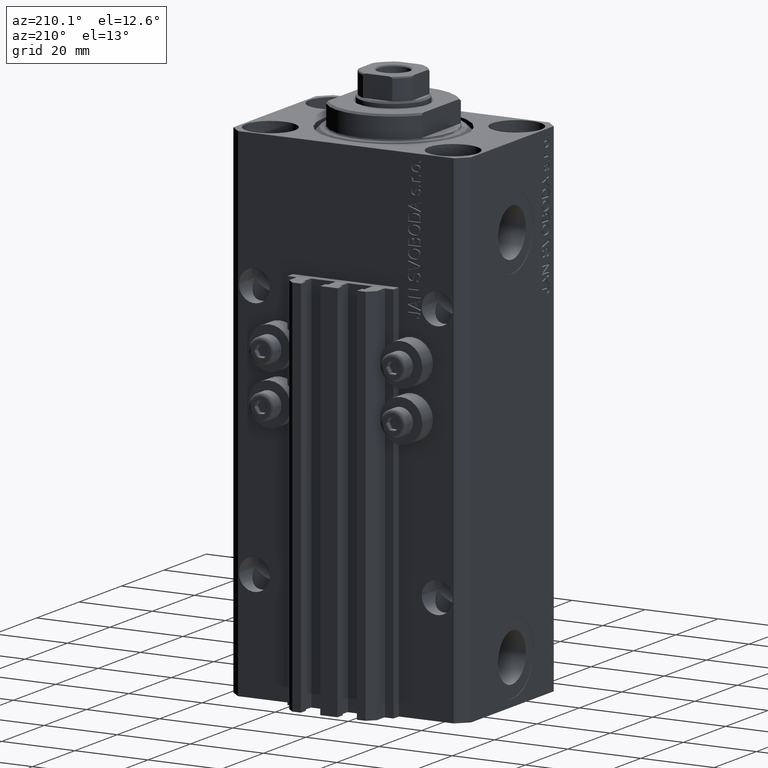
[diagram: clean part render]
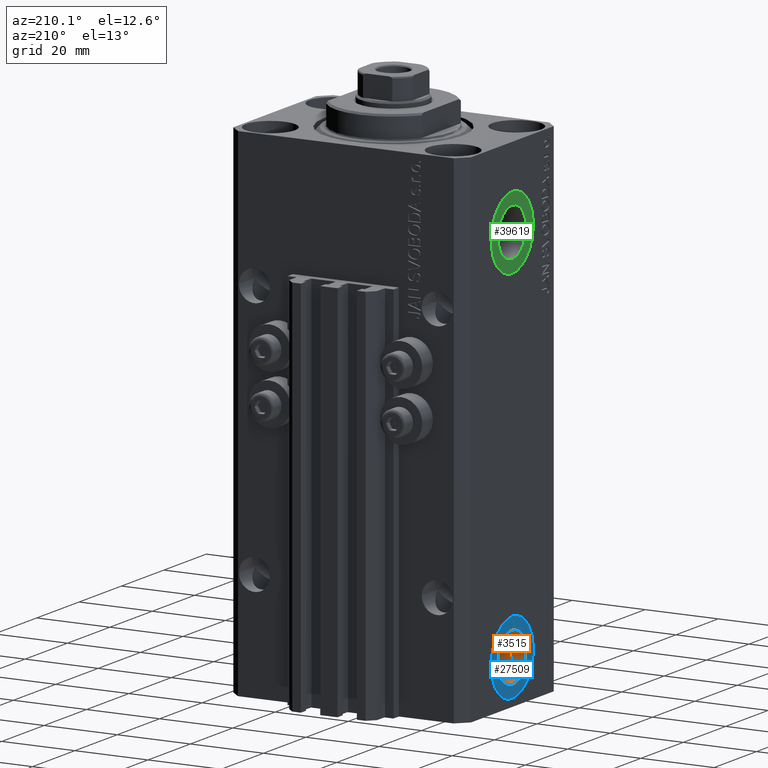
[diagram: same view with three faces highlighted in distinct colors, each labeled with its STEP entity id]
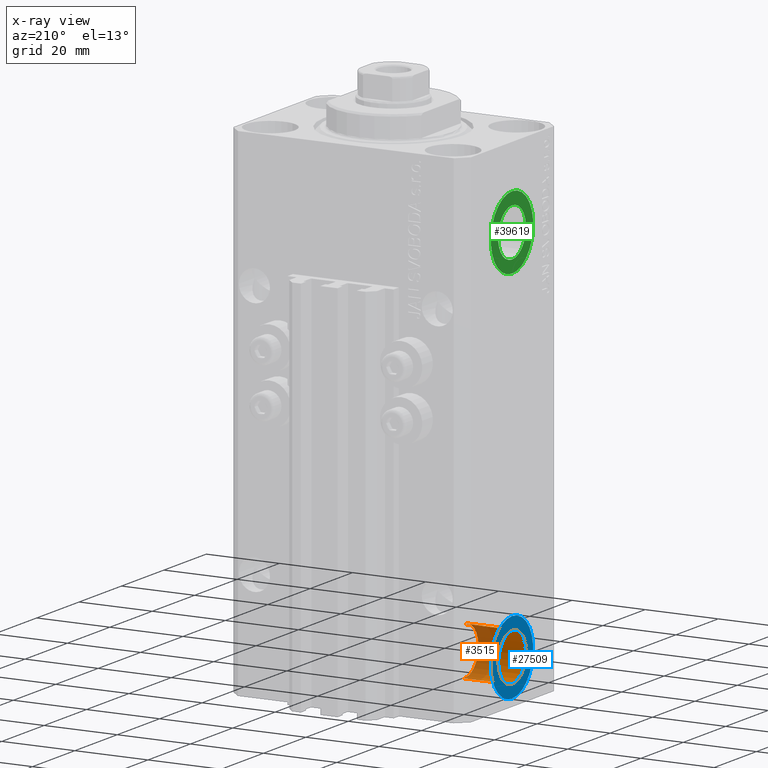
[diagram: x-ray of the same camera — body ghosted, the three highlighted faces saturated]
A machine part, auxiliary view with three faces highlighted in distinct colors.
The next image is the same camera in x-ray (body ghosted, the three faces saturated) — at least one of them is partly hidden behind the body in this view.
Their STEP definitions:

[orange] entity #3515 — the highlighted cylindrical surface (edge-blend (fillet) strip) has radius 6.58 mm, axis along (-1, -0, -0).
#44 = CIRCLE ( 'NONE', #26980, 6.580000000000002736 ) ;
#843 = CYLINDRICAL_SURFACE ( 'NONE', #41608, 6.580000000000002736 ) ;
#1078 = FACE_OUTER_BOUND ( 'NONE', #39132, .T. ) ;
#2092 = CARTESIAN_POINT ( 'NONE',  ( -32.39999999999650271, -1.530808498934191561E-14, -118.4200000000000017 ) ) ;
#2604 = DIRECTION ( 'NONE',  ( -1.000000000000000000, -0.000000000000000000, -0.000000000000000000 ) ) ;
#3023 = LINE ( 'NONE', #9784, #27135 ) ;
#3219 = DIRECTION ( 'NONE',  ( 0.000000000000000000, 0.000000000000000000, 1.000000000000000000 ) ) ;
#3515 = ADVANCED_FACE ( 'NONE', ( #1078 ), #843, .F. ) ;
#4027 = CIRCLE ( 'NONE', #30978, 6.580000000000002736 ) ;
#4088 = ORIENTED_EDGE ( 'NONE', *, *, #42641, .F. ) ;
#4459 = DIRECTION ( 'NONE',  ( -1.000000000000000000, -0.000000000000000000, -0.000000000000000000 ) ) ;
#5133 = ORIENTED_EDGE ( 'NONE', *, *, #34932, .T. ) ;
#5282 = ORIENTED_EDGE ( 'NONE', *, *, #7528, .F. ) ;
#5968 = CARTESIAN_POINT ( 'NONE',  ( -19.39999999999650271, -1.450226739550295657E-14, -131.5800000000000125 ) ) ;
#7528 = EDGE_CURVE ( 'NONE', #27014, #8619, #44, .T. ) ;
#8619 = VERTEX_POINT ( 'NONE', #33846 ) ;
#9784 = CARTESIAN_POINT ( 'NONE',  ( -19.39999999999650271, -1.530808498934191561E-14, -118.4200000000000017 ) ) ;
#10211 = DIRECTION ( 'NONE',  ( -1.000000000000000000, 0.000000000000000000, 0.000000000000000000 ) ) ;
#18920 = CARTESIAN_POINT ( 'NONE',  ( -19.39999999999650271, -1.530808498934191561E-14, -125.0000000000000000 ) ) ;
#21071 = CARTESIAN_POINT ( 'NONE',  ( -19.39999999999650271, -1.530808498934191561E-14, -125.0000000000000000 ) ) ;
#21781 = DIRECTION ( 'NONE',  ( -1.000000000000000000, 0.000000000000000000, 0.000000000000000000 ) ) ;
#23717 = VERTEX_POINT ( 'NONE', #2092 ) ;
#24444 = DIRECTION ( 'NONE',  ( 0.000000000000000000, 0.000000000000000000, 1.000000000000000000 ) ) ;
#24768 = LINE ( 'NONE', #5968, #35520 ) ;
#26310 = CARTESIAN_POINT ( 'NONE',  ( -32.39999999999650271, -1.450226739550295657E-14, -131.5800000000000125 ) ) ;
#26980 = AXIS2_PLACEMENT_3D ( 'NONE', #21071, #21781, #24444 ) ;
#27014 = VERTEX_POINT ( 'NONE', #34679 ) ;
#27135 = VECTOR ( 'NONE', #31970, 1000.000000000000000 ) ;
#28761 = ORIENTED_EDGE ( 'NONE', *, *, #40924, .T. ) ;
#30978 = AXIS2_PLACEMENT_3D ( 'NONE', #39881, #10211, #3219 ) ;
#31970 = DIRECTION ( 'NONE',  ( -1.000000000000000000, -0.000000000000000000, -0.000000000000000000 ) ) ;
#33846 = CARTESIAN_POINT ( 'NONE',  ( -19.39999999999650271, -1.530808498934191561E-14, -118.4200000000000017 ) ) ;
#34679 = CARTESIAN_POINT ( 'NONE',  ( -19.39999999999650271, -1.450226739550295657E-14, -131.5800000000000125 ) ) ;
#34932 = EDGE_CURVE ( 'NONE', #27014, #46816, #24768, .T. ) ;
#35520 = VECTOR ( 'NONE', #2604, 1000.000000000000000 ) ;
#39132 = EDGE_LOOP ( 'NONE', ( #5282, #5133, #28761, #4088 ) ) ;
#39881 = CARTESIAN_POINT ( 'NONE',  ( -32.39999999999650271, -1.530808498934191561E-14, -125.0000000000000000 ) ) ;
#40924 = EDGE_CURVE ( 'NONE', #46816, #23717, #4027, .T. ) ;
#41355 = DIRECTION ( 'NONE',  ( 0.000000000000000000, 0.000000000000000000, 1.000000000000000000 ) ) ;
#41608 = AXIS2_PLACEMENT_3D ( 'NONE', #18920, #4459, #41355 ) ;
#42641 = EDGE_CURVE ( 'NONE', #8619, #23717, #3023, .T. ) ;
#46816 = VERTEX_POINT ( 'NONE', #26310 ) ;

[blue] entity #27509 — the highlighted planar face has unit normal (-1, 0, 0).
#846 = ORIENTED_EDGE ( 'NONE', *, *, #32127, .T. ) ;
#1350 = DIRECTION ( 'NONE',  ( -1.000000000000000000, 0.000000000000000000, 0.000000000000000000 ) ) ;
#1447 = CIRCLE ( 'NONE', #18384, 6.580000000000002736 ) ;
#1583 = AXIS2_PLACEMENT_3D ( 'NONE', #23879, #37904, #8705 ) ;
#2092 = CARTESIAN_POINT ( 'NONE',  ( -32.39999999999650271, -1.530808498934191561E-14, -118.4200000000000017 ) ) ;
#3219 = DIRECTION ( 'NONE',  ( 0.000000000000000000, 0.000000000000000000, 1.000000000000000000 ) ) ;
#3671 = AXIS2_PLACEMENT_3D ( 'NONE', #41626, #1350, #27129 ) ;
#4027 = CIRCLE ( 'NONE', #30978, 6.580000000000002736 ) ;
#4695 = CARTESIAN_POINT ( 'NONE',  ( -32.39999999999650271, -1.530808498934191561E-14, -125.0000000000000000 ) ) ;
#6329 = DIRECTION ( 'NONE',  ( 0.000000000000000000, 0.000000000000000000, 1.000000000000000000 ) ) ;
#6892 = CARTESIAN_POINT ( 'NONE',  ( -32.39999999999650271, -1.408343819019456097E-14, -135.0000000000000000 ) ) ;
#8705 = DIRECTION ( 'NONE',  ( 0.000000000000000000, 0.000000000000000000, 1.000000000000000000 ) ) ;
#9909 = EDGE_LOOP ( 'NONE', ( #20562, #846 ) ) ;
#10211 = DIRECTION ( 'NONE',  ( -1.000000000000000000, 0.000000000000000000, 0.000000000000000000 ) ) ;
#10760 = AXIS2_PLACEMENT_3D ( 'NONE', #47383, #27077, #34339 ) ;
#18384 = AXIS2_PLACEMENT_3D ( 'NONE', #4695, #39146, #6329 ) ;
#20562 = ORIENTED_EDGE ( 'NONE', *, *, #33727, .T. ) ;
#23717 = VERTEX_POINT ( 'NONE', #2092 ) ;
#23879 = CARTESIAN_POINT ( 'NONE',  ( -32.39999999999650271, -1.530808498934191561E-14, -125.0000000000000000 ) ) ;
#24643 = VERTEX_POINT ( 'NONE', #6892 ) ;
#26310 = CARTESIAN_POINT ( 'NONE',  ( -32.39999999999650271, -1.450226739550295657E-14, -131.5800000000000125 ) ) ;
#26544 = CARTESIAN_POINT ( 'NONE',  ( -32.39999999999650271, -1.530808498934191561E-14, -115.0000000000000000 ) ) ;
#26895 = FACE_OUTER_BOUND ( 'NONE', #9909, .T. ) ;
#27077 = DIRECTION ( 'NONE',  ( -1.000000000000000000, 0.000000000000000000, 0.000000000000000000 ) ) ;
#27129 = DIRECTION ( 'NONE',  ( 0.000000000000000000, 0.000000000000000000, 1.000000000000000000 ) ) ;
#27240 = ORIENTED_EDGE ( 'NONE', *, *, #30248, .F. ) ;
#27509 = ADVANCED_FACE ( 'NONE', ( #34387, #26895 ), #45479, .T. ) ;
#30248 = EDGE_CURVE ( 'NONE', #23717, #46816, #1447, .T. ) ;
#30978 = AXIS2_PLACEMENT_3D ( 'NONE', #39881, #10211, #3219 ) ;
#31620 = VERTEX_POINT ( 'NONE', #26544 ) ;
#32127 = EDGE_CURVE ( 'NONE', #24643, #31620, #36167, .T. ) ;
#32431 = ORIENTED_EDGE ( 'NONE', *, *, #40924, .F. ) ;
#33727 = EDGE_CURVE ( 'NONE', #31620, #24643, #44718, .T. ) ;
#34339 = DIRECTION ( 'NONE',  ( 0.000000000000000000, 0.000000000000000000, 1.000000000000000000 ) ) ;
#34387 = FACE_BOUND ( 'NONE', #38221, .T. ) ;
#36167 = CIRCLE ( 'NONE', #10760, 9.999999999999994671 ) ;
#37904 = DIRECTION ( 'NONE',  ( -1.000000000000000000, 0.000000000000000000, 0.000000000000000000 ) ) ;
#38221 = EDGE_LOOP ( 'NONE', ( #27240, #32431 ) ) ;
#39146 = DIRECTION ( 'NONE',  ( -1.000000000000000000, 0.000000000000000000, 0.000000000000000000 ) ) ;
#39881 = CARTESIAN_POINT ( 'NONE',  ( -32.39999999999650271, -1.530808498934191561E-14, -125.0000000000000000 ) ) ;
#40924 = EDGE_CURVE ( 'NONE', #46816, #23717, #4027, .T. ) ;
#41626 = CARTESIAN_POINT ( 'NONE',  ( -32.39999999999650271, -1.530808498934191561E-14, -125.0000000000000000 ) ) ;
#44718 = CIRCLE ( 'NONE', #1583, 9.999999999999994671 ) ;
#45479 = PLANE ( 'NONE',  #3671 ) ;
#46816 = VERTEX_POINT ( 'NONE', #26310 ) ;
#47383 = CARTESIAN_POINT ( 'NONE',  ( -32.39999999999650271, -1.530808498934191561E-14, -125.0000000000000000 ) ) ;

[green] entity #39619 — the highlighted planar face has unit normal (-1, 0, 0).
#2235 = VERTEX_POINT ( 'NONE', #19519 ) ;
#3512 = VERTEX_POINT ( 'NONE', #37248 ) ;
#6275 = AXIS2_PLACEMENT_3D ( 'NONE', #28985, #18396, #33092 ) ;
#6839 = DIRECTION ( 'NONE',  ( 0.000000000000000000, 0.000000000000000000, 1.000000000000000000 ) ) ;
#9782 = DIRECTION ( 'NONE',  ( 0.000000000000000000, 0.000000000000000000, 1.000000000000000000 ) ) ;
#9855 = DIRECTION ( 'NONE',  ( -1.000000000000000000, 0.000000000000000000, 0.000000000000000000 ) ) ;
#11000 = EDGE_CURVE ( 'NONE', #14952, #34709, #13995, .T. ) ;
#11182 = CARTESIAN_POINT ( 'NONE',  ( -32.39999999999650271, 0.000000000000000000, -22.00000000000000000 ) ) ;
#11737 = CIRCLE ( 'NONE', #38712, 6.579999999999999183 ) ;
#12364 = EDGE_LOOP ( 'NONE', ( #32018, #14092 ) ) ;
#12548 = EDGE_CURVE ( 'NONE', #2235, #3512, #11737, .T. ) ;
#13207 = AXIS2_PLACEMENT_3D ( 'NONE', #14586, #9855, #31811 ) ;
#13995 = CIRCLE ( 'NONE', #13207, 10.00000000000000000 ) ;
#14092 = ORIENTED_EDGE ( 'NONE', *, *, #12548, .F. ) ;
#14586 = CARTESIAN_POINT ( 'NONE',  ( -32.39999999999650271, 0.000000000000000000, -22.00000000000000000 ) ) ;
#14952 = VERTEX_POINT ( 'NONE', #24572 ) ;
#17256 = FACE_OUTER_BOUND ( 'NONE', #18261, .T. ) ;
#17866 = CIRCLE ( 'NONE', #6275, 6.579999999999999183 ) ;
#18261 = EDGE_LOOP ( 'NONE', ( #41929, #46647 ) ) ;
#18396 = DIRECTION ( 'NONE',  ( -1.000000000000000000, 0.000000000000000000, 0.000000000000000000 ) ) ;
#19519 = CARTESIAN_POINT ( 'NONE',  ( -32.39999999999650271, 8.058175938389579572E-16, -28.57999999999999829 ) ) ;
#22884 = CARTESIAN_POINT ( 'NONE',  ( -32.39999999999650271, 0.000000000000000000, -11.99999999999999822 ) ) ;
#24572 = CARTESIAN_POINT ( 'NONE',  ( -32.39999999999650271, 1.224646799147353059E-15, -32.00000000000000000 ) ) ;
#25689 = AXIS2_PLACEMENT_3D ( 'NONE', #37517, #44031, #33420 ) ;
#28096 = PLANE ( 'NONE',  #40945 ) ;
#28985 = CARTESIAN_POINT ( 'NONE',  ( -32.39999999999650271, 0.000000000000000000, -22.00000000000000000 ) ) ;
#29022 = DIRECTION ( 'NONE',  ( -1.000000000000000000, 0.000000000000000000, 0.000000000000000000 ) ) ;
#31811 = DIRECTION ( 'NONE',  ( 0.000000000000000000, 0.000000000000000000, 1.000000000000000000 ) ) ;
#32018 = ORIENTED_EDGE ( 'NONE', *, *, #40036, .F. ) ;
#33092 = DIRECTION ( 'NONE',  ( 0.000000000000000000, 0.000000000000000000, 1.000000000000000000 ) ) ;
#33420 = DIRECTION ( 'NONE',  ( 0.000000000000000000, 0.000000000000000000, 1.000000000000000000 ) ) ;
#34709 = VERTEX_POINT ( 'NONE', #22884 ) ;
#35351 = CARTESIAN_POINT ( 'NONE',  ( -32.39999999999650271, 0.000000000000000000, -22.00000000000000000 ) ) ;
#37248 = CARTESIAN_POINT ( 'NONE',  ( -32.39999999999650271, 0.000000000000000000, -15.41999999999999993 ) ) ;
#37517 = CARTESIAN_POINT ( 'NONE',  ( -32.39999999999650271, 0.000000000000000000, -22.00000000000000000 ) ) ;
#38712 = AXIS2_PLACEMENT_3D ( 'NONE', #11182, #29022, #6839 ) ;
#39548 = CIRCLE ( 'NONE', #25689, 10.00000000000000000 ) ;
#39619 = ADVANCED_FACE ( 'NONE', ( #42599, #17256 ), #28096, .T. ) ;
#40036 = EDGE_CURVE ( 'NONE', #3512, #2235, #17866, .T. ) ;
#40945 = AXIS2_PLACEMENT_3D ( 'NONE', #35351, #42828, #9782 ) ;
#41929 = ORIENTED_EDGE ( 'NONE', *, *, #44233, .T. ) ;
#42599 = FACE_BOUND ( 'NONE', #12364, .T. ) ;
#42828 = DIRECTION ( 'NONE',  ( -1.000000000000000000, 0.000000000000000000, 0.000000000000000000 ) ) ;
#44031 = DIRECTION ( 'NONE',  ( -1.000000000000000000, 0.000000000000000000, 0.000000000000000000 ) ) ;
#44233 = EDGE_CURVE ( 'NONE', #34709, #14952, #39548, .T. ) ;
#46647 = ORIENTED_EDGE ( 'NONE', *, *, #11000, .T. ) ;